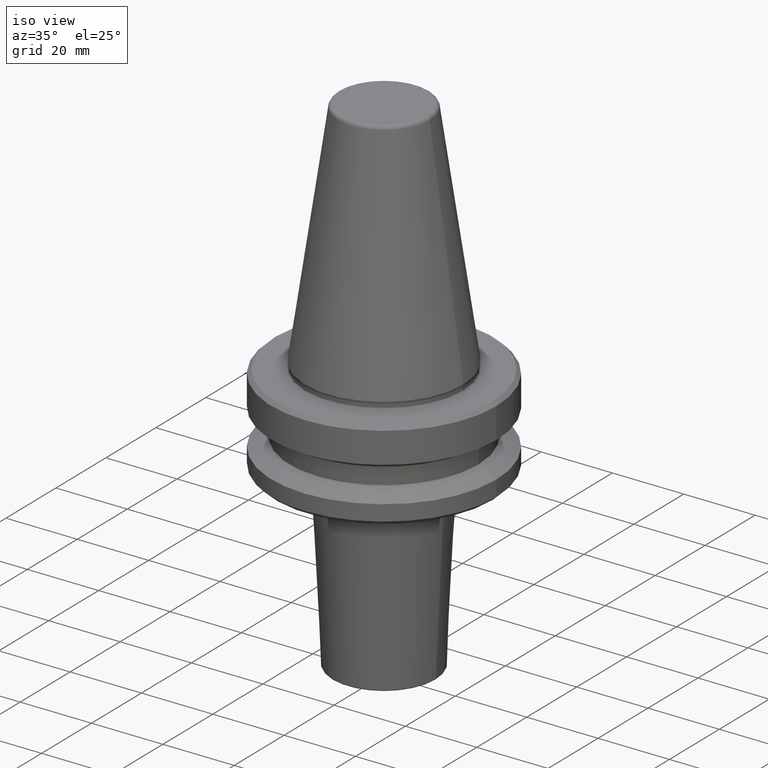
[diagram: clean part render]
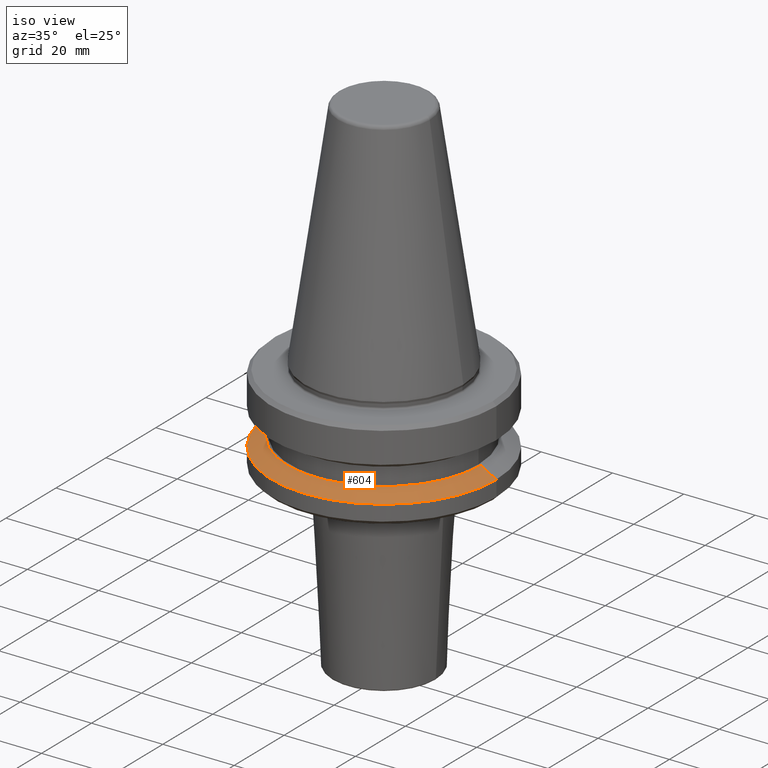
[diagram: same view with one face highlighted and labeled with its STEP entity id]
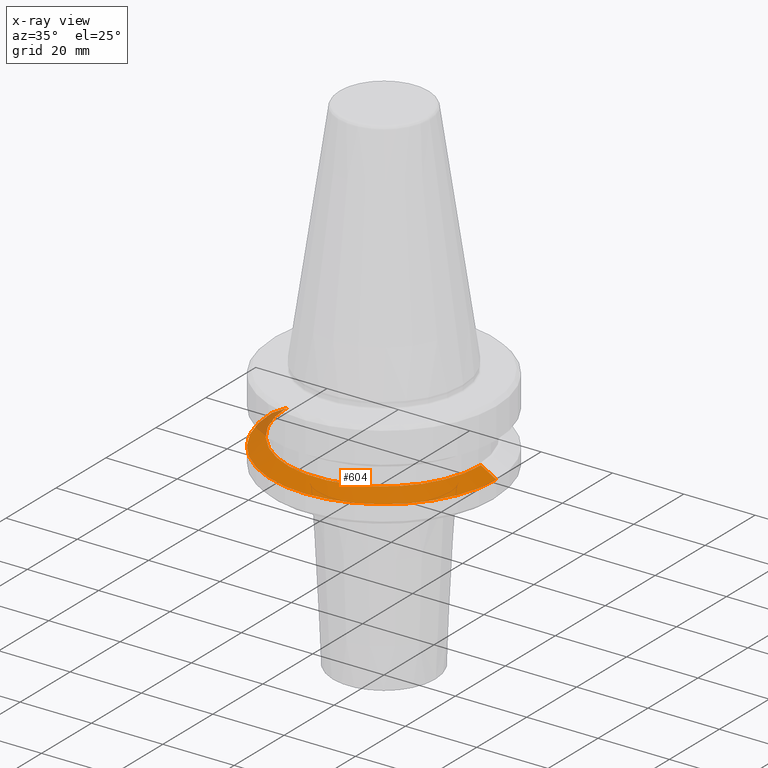
[diagram: x-ray of the same camera — body ghosted, the highlighted face saturated]
A machine part, iso view. The second image highlights one B-rep face of the part: STEP entity #604.
The next image is the same camera in x-ray: the body ghosted, the highlighted face saturated — about 4% of this face is hidden behind the body in this view.
In plain terms, the highlighted conical surface has half-angle 60 deg.
Its self-contained STEP definition (entity closure, byte-faithful):
#9 = CIRCLE ( 'NONE', #388, 27.16962701892256100 ) ;
#24 = VERTEX_POINT ( 'NONE', #168 ) ;
#63 = CARTESIAN_POINT ( 'NONE',  ( 27.16962701892256100, 3.592478546794633900E-015, -84.50000000000068200 ) ) ;
#67 = CONICAL_SURFACE ( 'NONE', #800, 31.50000000000008500, 1.047197551196587000 ) ;
#100 = DIRECTION ( 'NONE',  ( 0.8660254037844332700, 1.060575238724900300E-016, -0.5000000000000093300 ) ) ;
#105 = CARTESIAN_POINT ( 'NONE',  ( -31.50000000000008500, 0.0000000000000000000, -87.00014200631733300 ) ) ;
#134 = CARTESIAN_POINT ( 'NONE',  ( -27.16962701892256100, 0.0000000000000000000, -84.50000000000068200 ) ) ;
#168 = CARTESIAN_POINT ( 'NONE',  ( 31.50000000000008500, 0.0000000000000000000, -87.00014200631733300 ) ) ;
#199 = LINE ( 'NONE', #567, #390 ) ;
#296 = EDGE_CURVE ( 'NONE', #785, #942, #307, .T. ) ;
#306 = VERTEX_POINT ( 'NONE', #63 ) ;
#307 = LINE ( 'NONE', #105, #510 ) ;
#327 = ORIENTED_EDGE ( 'NONE', *, *, #992, .T. ) ;
#387 = CARTESIAN_POINT ( 'NONE',  ( -31.50000000000008500, 3.857637417314172900E-015, -87.00014200631733300 ) ) ;
#388 = AXIS2_PLACEMENT_3D ( 'NONE', #955, #447, #967 ) ;
#390 = VECTOR ( 'NONE', #100, 1000.000000000000000 ) ;
#393 = DIRECTION ( 'NONE',  ( 1.000000000000000000, 0.0000000000000000000, 0.0000000000000000000 ) ) ;
#440 = ORIENTED_EDGE ( 'NONE', *, *, #296, .T. ) ;
#443 = CIRCLE ( 'NONE', #649, 31.50000000000008500 ) ;
#447 = DIRECTION ( 'NONE',  ( -0.0000000000000000000, -0.0000000000000000000, 1.000000000000000000 ) ) ;
#485 = EDGE_CURVE ( 'NONE', #306, #24, #199, .T. ) ;
#500 = DIRECTION ( 'NONE',  ( 0.0000000000000000000, 0.0000000000000000000, -1.000000000000000000 ) ) ;
#510 = VECTOR ( 'NONE', #989, 1000.000000000000000 ) ;
#518 = FACE_OUTER_BOUND ( 'NONE', #576, .T. ) ;
#567 = CARTESIAN_POINT ( 'NONE',  ( 31.50000000000008500, 3.857637417314172900E-015, -87.00014200631733300 ) ) ;
#576 = EDGE_LOOP ( 'NONE', ( #773, #669, #440, #327 ) ) ;
#604 = ADVANCED_FACE ( 'NONE', ( #518 ), #67, .T. ) ;
#649 = AXIS2_PLACEMENT_3D ( 'NONE', #959, #783, #393 ) ;
#669 = ORIENTED_EDGE ( 'NONE', *, *, #938, .F. ) ;
#773 = ORIENTED_EDGE ( 'NONE', *, *, #485, .F. ) ;
#783 = DIRECTION ( 'NONE',  ( -0.0000000000000000000, -0.0000000000000000000, 1.000000000000000000 ) ) ;
#785 = VERTEX_POINT ( 'NONE', #134 ) ;
#800 = AXIS2_PLACEMENT_3D ( 'NONE', #1055, #500, #960 ) ;
#938 = EDGE_CURVE ( 'NONE', #785, #306, #9, .T. ) ;
#942 = VERTEX_POINT ( 'NONE', #387 ) ;
#955 = CARTESIAN_POINT ( 'NONE',  ( 0.0000000000000000000, 0.0000000000000000000, -84.50000000000068200 ) ) ;
#959 = CARTESIAN_POINT ( 'NONE',  ( 0.0000000000000000000, 0.0000000000000000000, -87.00014200631733300 ) ) ;
#960 = DIRECTION ( 'NONE',  ( -1.000000000000000000, 0.0000000000000000000, 0.0000000000000000000 ) ) ;
#967 = DIRECTION ( 'NONE',  ( 1.000000000000000000, 0.0000000000000000000, 0.0000000000000000000 ) ) ;
#989 = DIRECTION ( 'NONE',  ( -0.8660254037844332700, 0.0000000000000000000, -0.5000000000000093300 ) ) ;
#992 = EDGE_CURVE ( 'NONE', #942, #24, #443, .T. ) ;
#1055 = CARTESIAN_POINT ( 'NONE',  ( 0.0000000000000000000, 0.0000000000000000000, -87.00014200631733300 ) ) ;